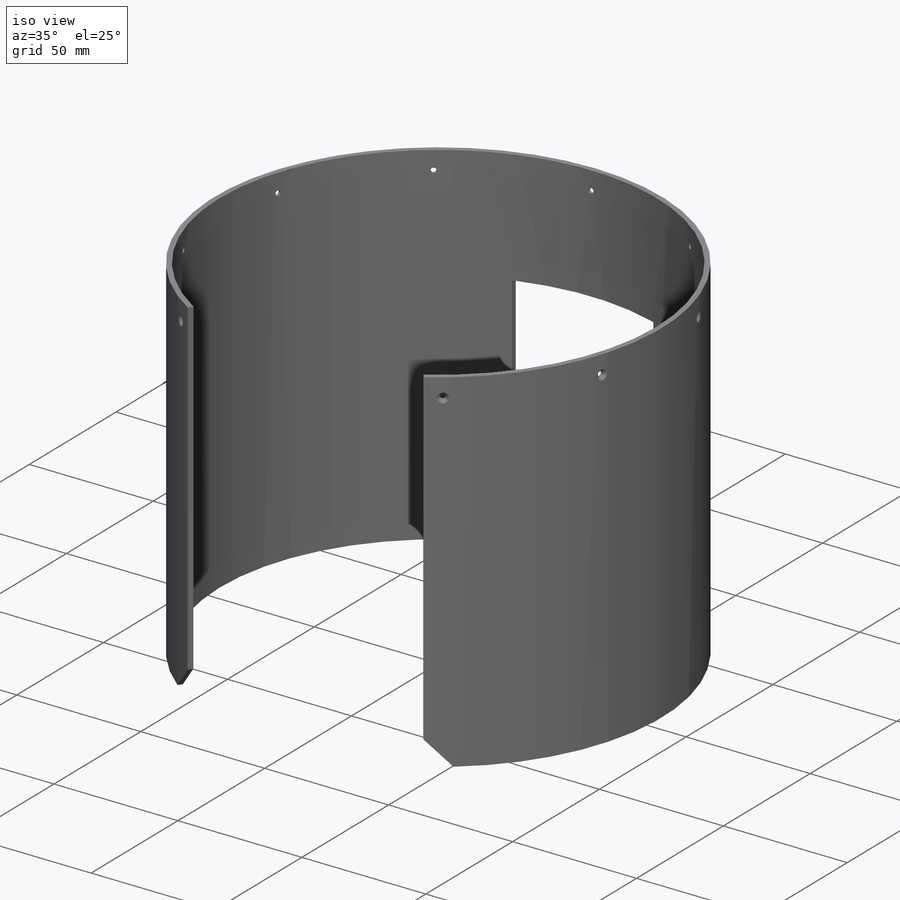
[diagram: iso view]
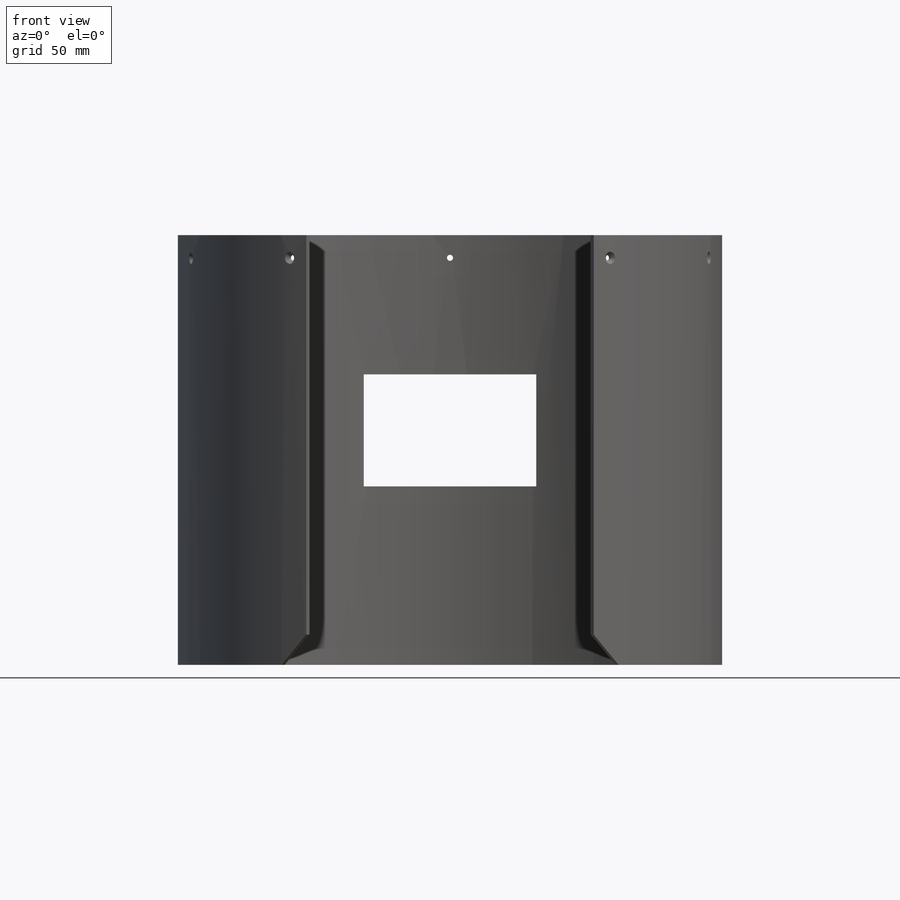
[diagram: front view]
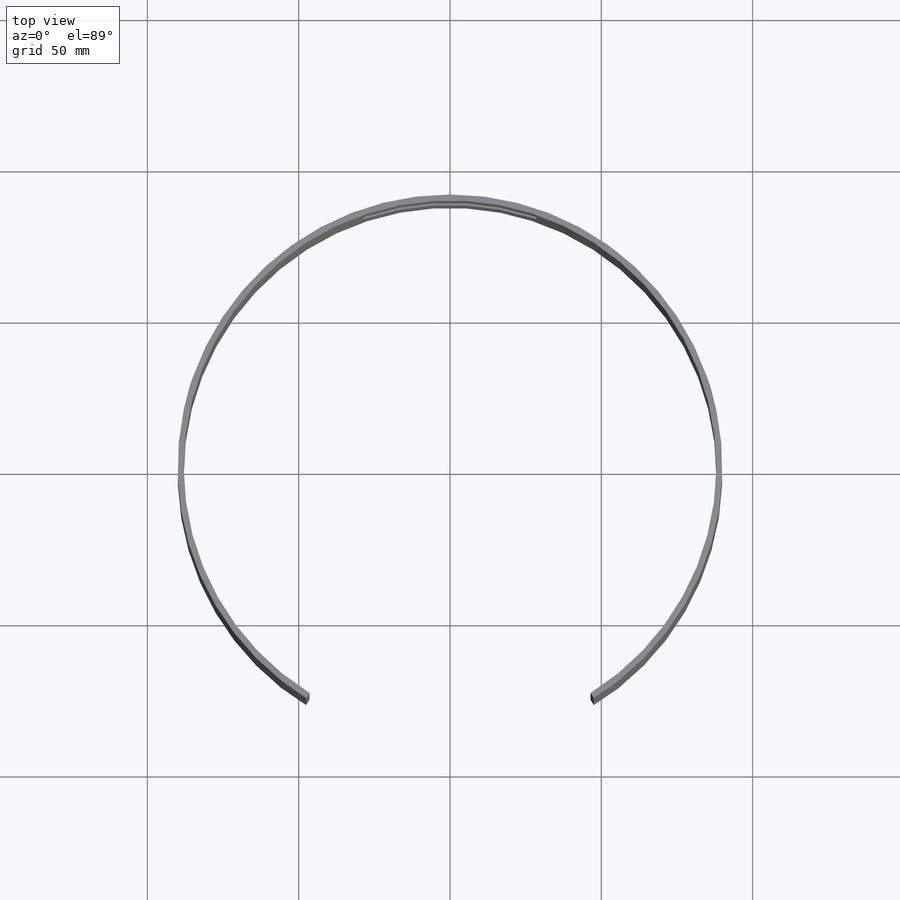
[diagram: top view]
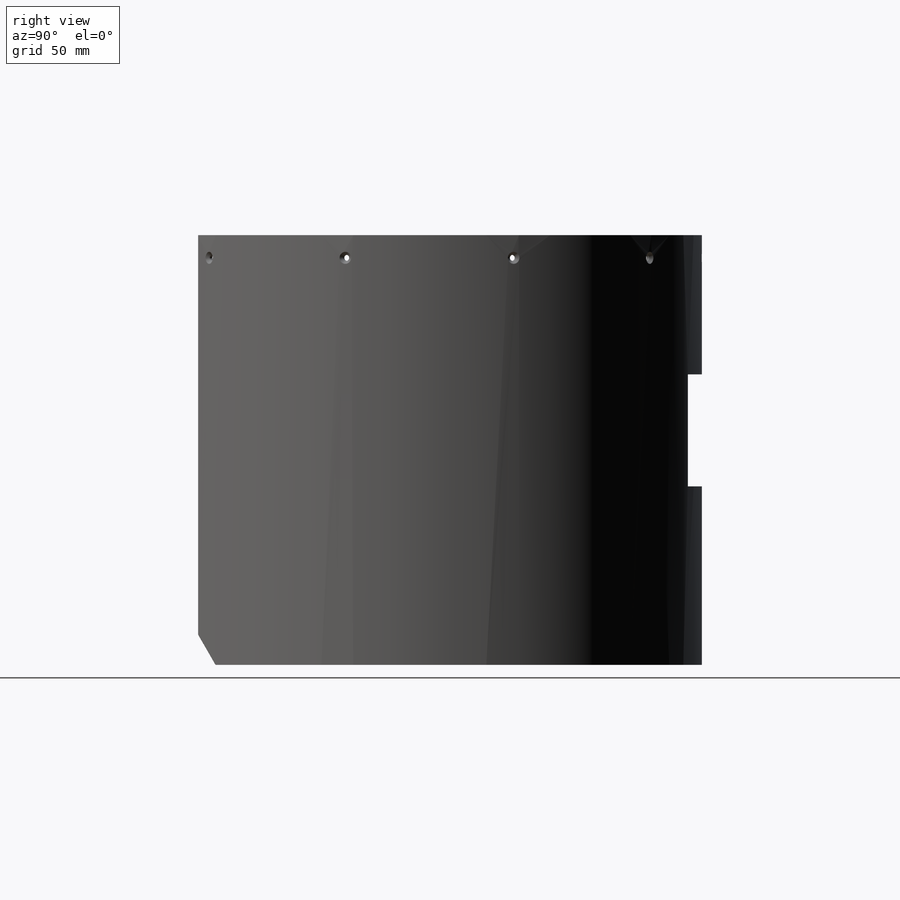
[diagram: right view]
SOLIDWORKS PART (.sldprt)
format: sldprt  version: not decoded by parser v0  size: 387,072 bytes
history: native  units: mm
features: plane x4, sketch x3, chamfer x2, cut_extrude x2, material x1, extrude x1, pattern_circular x1 (+9 scaffold rows collapsed)
feature tree (23):
  scaffold x9  (default folders/planes/origin — collapsed)
  material  "Material <não especificado>"
  plane  "Plano frontal"
  plane  "Plano superior"
  plane  "Plano direito"
  sketch  "Esboço1"  dims[D1=180.0mm D2=176.0mm D3=95.0mm]
  extrude  "Ressalto-extrusão1"  Depth=142mm
  chamfer  "Chanfro1"  Distance=10mm Angle=45deg
  plane  "Plano1"
  sketch  "Esboço2"  dims[D1=2.0mm D2=3.5mm]
  cut_extrude  "Corte-extrusão1"  [1 undecoded]
  pattern_circular  "PadrãoCircular1"  Count=10 Angle=360deg
  chamfer  "Chanfro2"  Distance=1mm Angle=45deg
  sketch  "Esboço5"  dims[D1=60.0mm D2=55.0mm D3=35.0mm D4=1.0mm]
  cut_extrude  "Corte-extrusão2"  [1 undecoded]
decode coverage: 7 of 9 modeling features carry decoded parameters
note: 2 parameter values undecoded
note: suppression state not decoded; provenance and decode notes live in map.json
